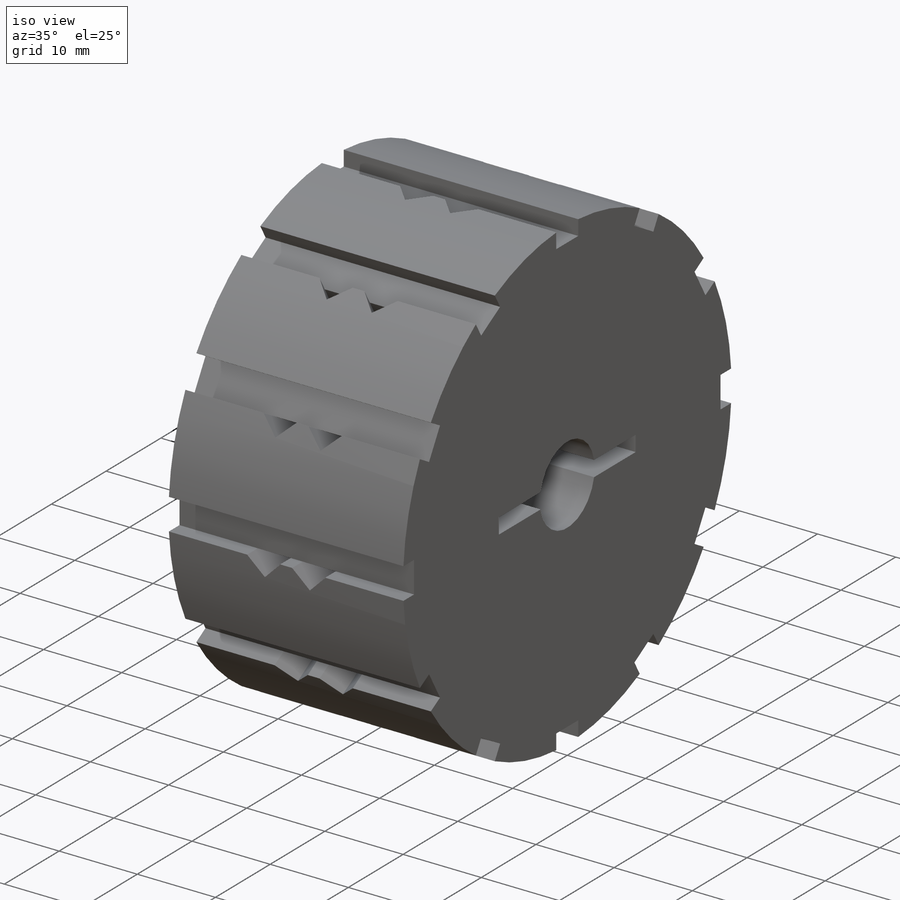
[diagram: iso view]
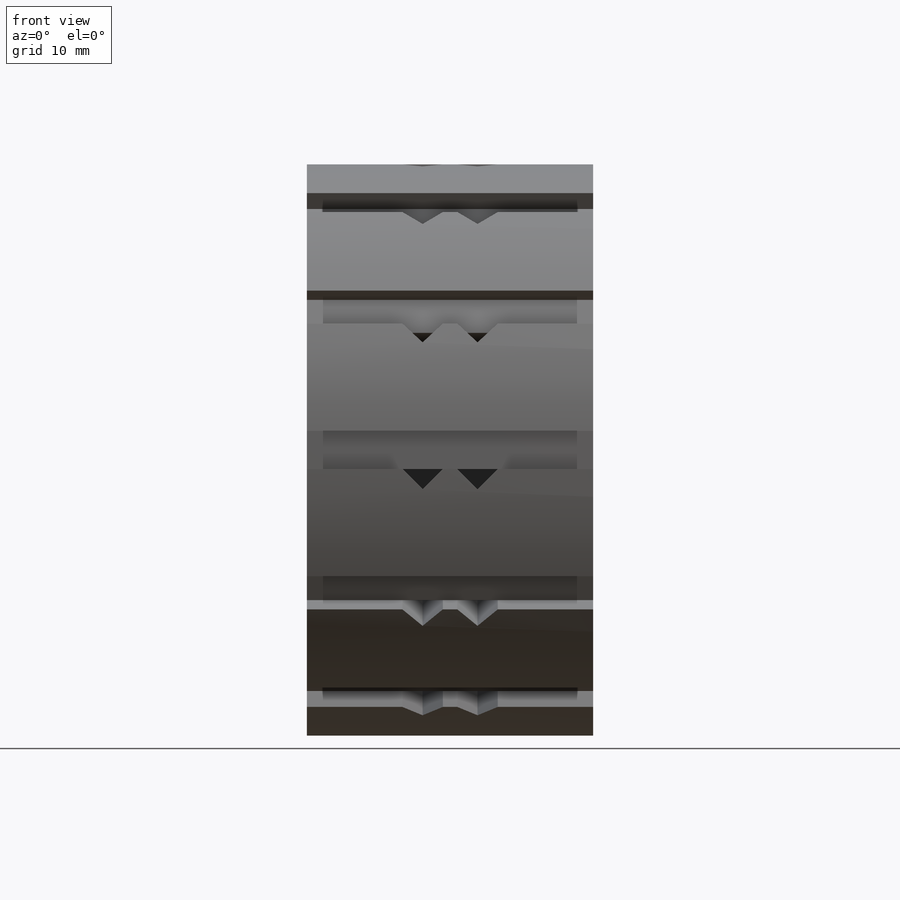
[diagram: front view]
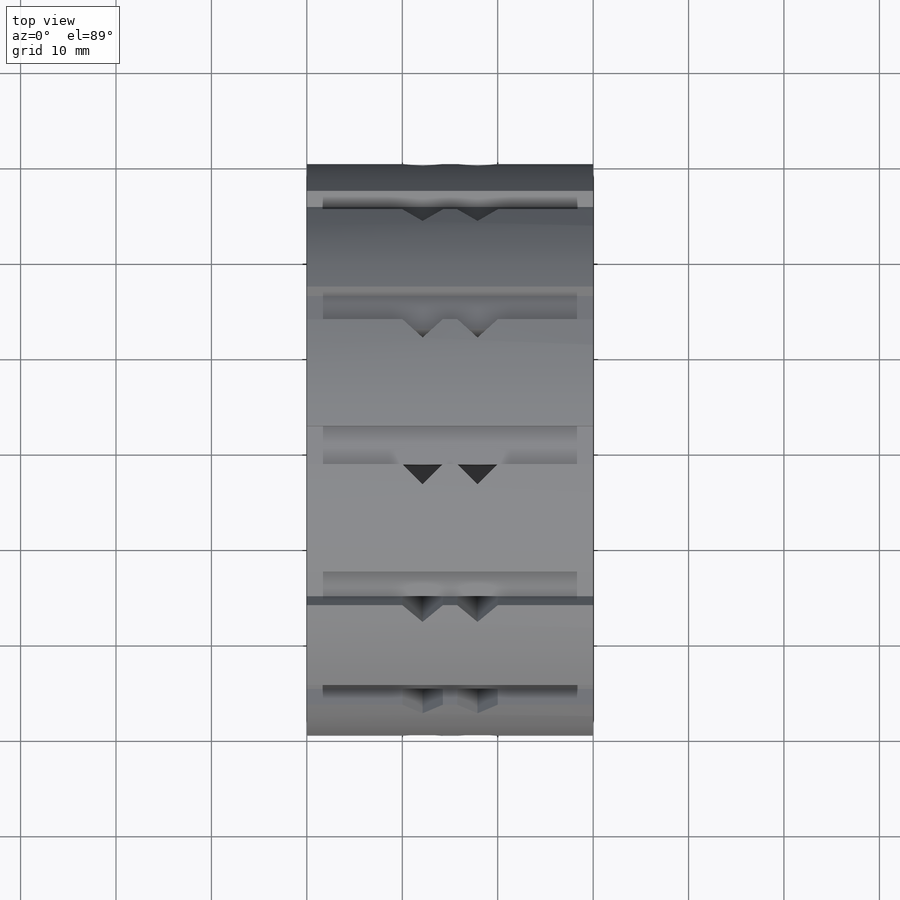
[diagram: top view]
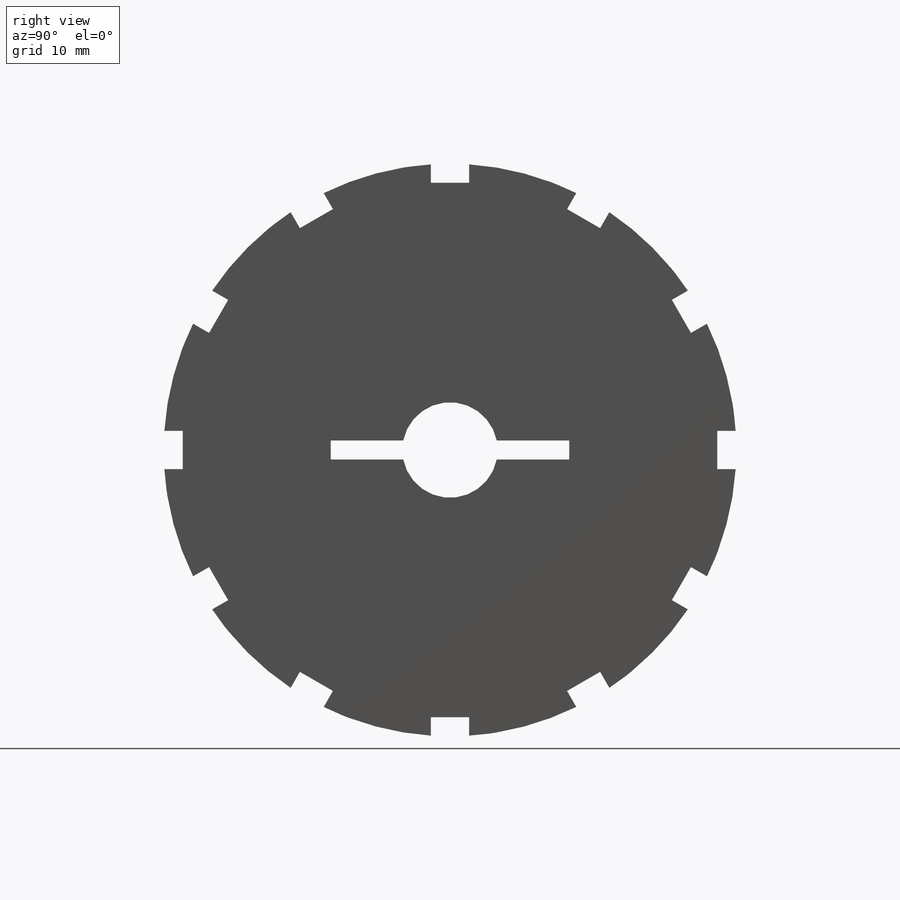
[diagram: right view]
SOLIDWORKS PART (.sldprt)
format: sldprt  version: not decoded by parser v0  size: 300,032 bytes
history: native  units: mm
features: plane x4, sketch x4, cut_extrude x3, material x1, extrude x1, pattern_circular x1 (+9 scaffold rows collapsed)
feature tree (23):
  scaffold x9  (default folders/planes/origin — collapsed)
  material  "材质 <未指定>"
  plane  "前视基准面"
  plane  "上视基准面"
  plane  "右视基准面"
  sketch  "草图1"  dims[D1=60.0mm]
  extrude  "凸台-拉伸1"  Depth=30mm
  sketch  "草图2"  dims[D1=2.0mm D2=2.0mm D3=2.0mm D4=2.0mm]
  cut_extrude  "切除-拉伸1"  [1 undecoded]
  sketch  "草图3"  dims[D1=10.0mm D2=1.0mm D3=12.5mm D4=12.5mm D5=25.0mm D6=2.0mm D7=2.0mm]
  cut_extrude  "切除-拉伸2"  [1 undecoded]
  plane  "基准面1"
  sketch  "草图4"  dims[D1=5.0mm D2=5.0mm D3=3.0mm D4=3.0mm D5=3.0mm D6=3.0mm D7=2.0mm]
  cut_extrude  "切除-拉伸3"  Depth=18mm
  pattern_circular  "阵列(圆周)2"  Count=12 Angle=360deg
decode coverage: 7 of 9 modeling features carry decoded parameters
note: 2 parameter values undecoded
note: suppression state not decoded; provenance and decode notes live in map.json
